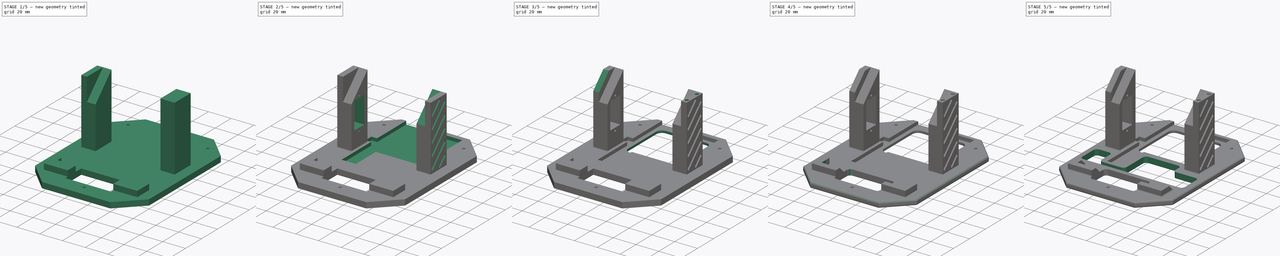
[diagram: build sequence overview — one tinted view per stage of 5, left to right]
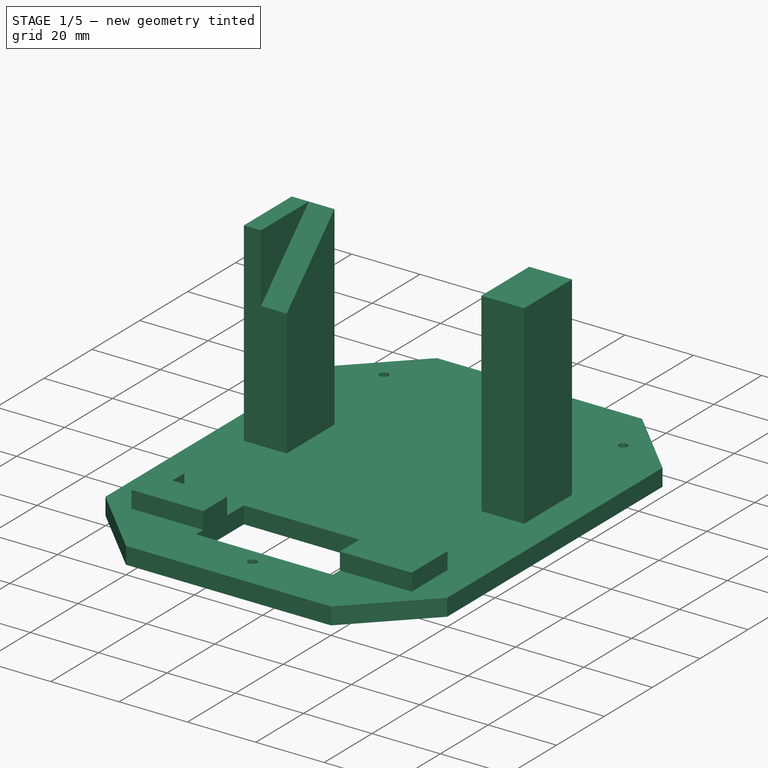
[diagram: stage 1 of 5 — iso view after this stage's code; geometry added in this stage tinted green]
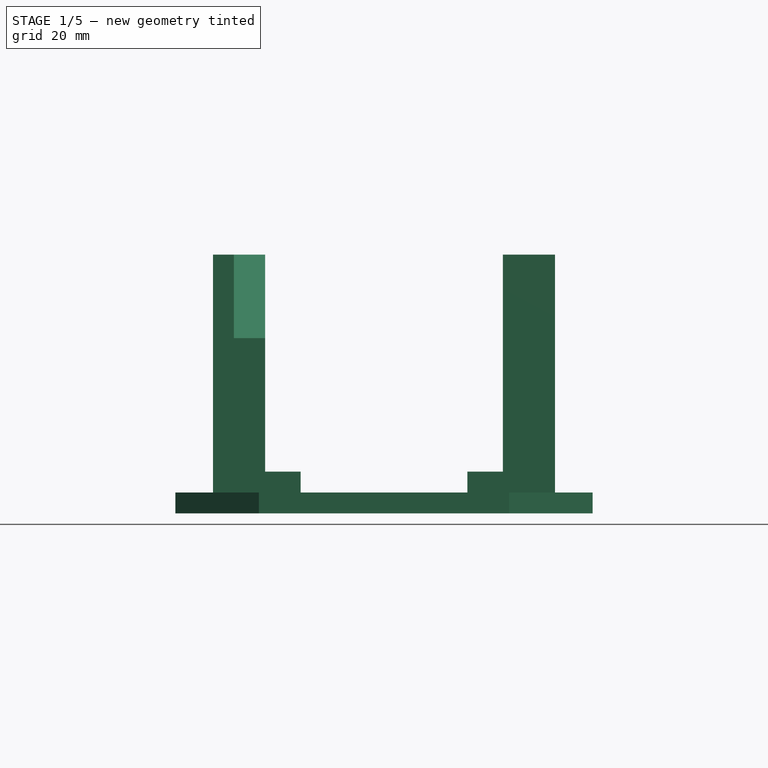
[diagram: stage 1 of 5 — front view after this stage's code; geometry added in this stage tinted green]
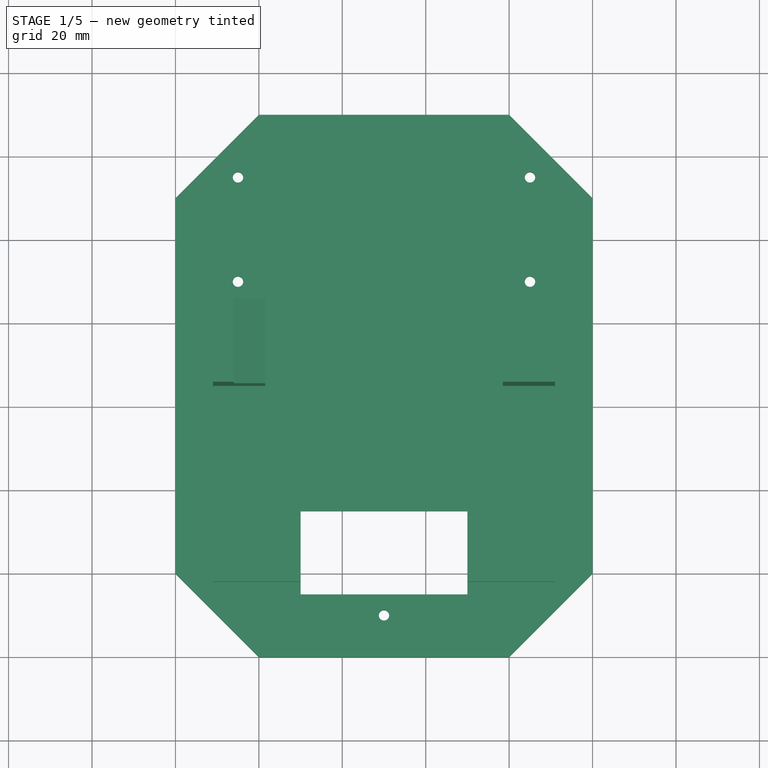
[diagram: stage 1 of 5 — top view after this stage's code; geometry added in this stage tinted green]
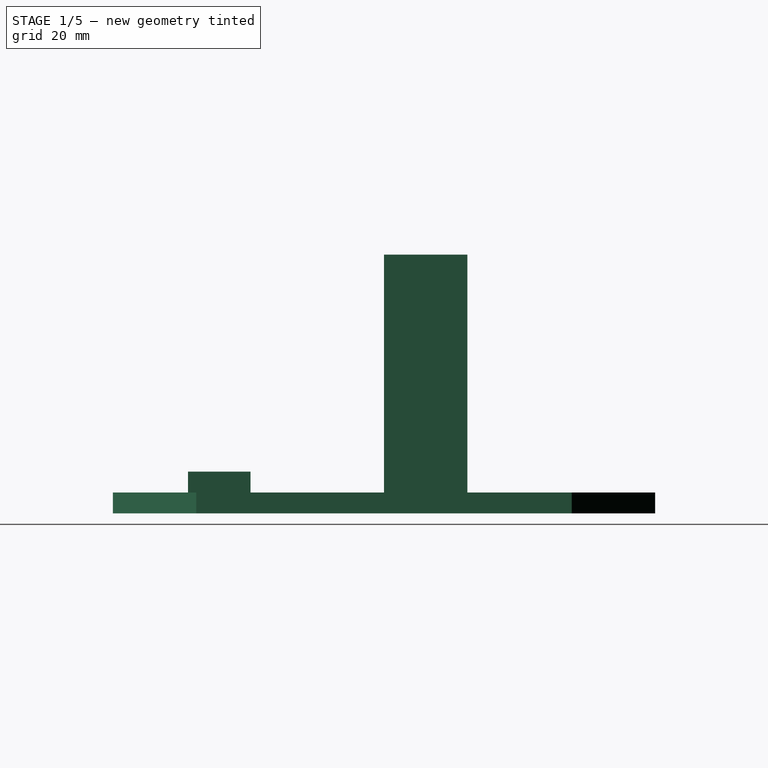
[diagram: stage 1 of 5 — right view after this stage's code; geometry added in this stage tinted green]
FCSTD DOCUMENT  (FreeCAD 0.15R4671 (Git))
Label: chassis
License: All rights reserved
LicenseURL: http://en.wikipedia.org/wiki/All_rights_reserved
objects: Sketcher::SketchObject×11, PartDesign::Pocket×8, PartDesign::Chamfer×4, PartDesign::Fillet×4, PartDesign::Pad×3
note: 41 computed .brp shape members not serialized (recipe doc carries the construction recipe); baked Part::Feature solids carry a one-line shape summary decoded from their .brp

FEATURE [Sketcher::SketchObject] Sketch
  sketch-geometry (17):
    g0: LineSegment StartX=0 StartY=0 StartZ=0 EndX=0 EndY=90 EndZ=0
    g1: LineSegment StartX=0 StartY=90 StartZ=0 EndX=20 EndY=110 EndZ=0
    g2: LineSegment StartX=20 StartY=110 StartZ=0 EndX=80 EndY=110 EndZ=0
    g3: LineSegment StartX=80 StartY=110 StartZ=0 EndX=100 EndY=90 EndZ=0
    g4: LineSegment StartX=100 StartY=90 StartZ=0 EndX=100 EndY=0 EndZ=0
    g5: LineSegment StartX=100 StartY=0 StartZ=0 EndX=80 EndY=-20 EndZ=0
    g6: LineSegment StartX=80 StartY=-20 StartZ=0 EndX=20 EndY=-20 EndZ=0
    g7: LineSegment StartX=20 StartY=-20 StartZ=0 EndX=0 EndY=0 EndZ=0
    g8: Circle CenterX=15 CenterY=95 CenterZ=0 NormalX=0 NormalY=0 NormalZ=1 Radius=1.25
    g9: Circle CenterX=15 CenterY=70 CenterZ=0 NormalX=0 NormalY=0 NormalZ=1 Radius=1.25
    g10: Circle CenterX=85 CenterY=95 CenterZ=0 NormalX=0 NormalY=0 NormalZ=1 Radius=1.25
    g11: Circle CenterX=85 CenterY=70 CenterZ=0 NormalX=0 NormalY=0 NormalZ=1 Radius=1.25
    g12: Circle CenterX=50 CenterY=-10 CenterZ=0 NormalX=0 NormalY=0 NormalZ=1 Radius=1.25
    g13: LineSegment StartX=30 StartY=-5 StartZ=0 EndX=70 EndY=-5 EndZ=0
    g14: LineSegment StartX=70 StartY=-5 StartZ=0 EndX=70 EndY=15 EndZ=0
    g15: LineSegment StartX=70 StartY=15 StartZ=0 EndX=30 EndY=15 EndZ=0
    g16: LineSegment StartX=30 StartY=15 StartZ=0 EndX=30 EndY=-5 EndZ=0
  constraints (50):
    c: Coincident(g-1,g0)
    c: PointOnObject(g0,g-2)
    c: Coincident(g0,g1)
    c: Coincident(g1,g2)
    c: Horizontal(g2)
    c: Coincident(g2,g3)
    c: Coincident(g3,g4)
    c: Vertical(g4)
    c: Coincident(g4,g5)
    c: Coincident(g5,g6)
    c: Horizontal(g6)
    c: Coincident(g6,g7)
    c: Coincident(g7,g0)
    c: Distance(g0) = 90
    c: Equal(g4,g0)
    c: PointOnObject(g4,g-1)
    c: Angle(g1) = 0.785398
    c: DistanceY(g1,g0) = -20
    c: DistanceX(g-1,g4) = 100
    c: Angle(g7) = 2.35619
    c: DistanceY(g-1,g6) = -20
    c: Equal(g3,g5)
    c: Equal(g5,g1)
    c: Equal(g11,g10)
    c: Equal(g10,g8)
    c: Equal(g8,g9)
    c: Radius(g8) = 1.25
    c: DistanceY(g8,g9) = -25
    c: DistanceX(g9,g8) = 0
    c: DistanceX(g10,g11) = 0
    c: DistanceY(g10,g11) = -25
    c: DistanceX(g10,g8) = -70
    c: DistanceY(g8,g10) = 0
    c: DistanceX(g-1,g9) = 15
    c: DistanceY(g-1,g9) = 70
    c: Equal(g9,g12)
    c: DistanceX(g12) = 50
    c: DistanceY(g12) = -10
    c: Coincident(g13,g14)
    c: Coincident(g14,g15)
    c: Coincident(g15,g16)
    c: Coincident(g16,g13)
    c: Horizontal(g13)
    c: Horizontal(g15)
    c: Vertical(g14)
    c: Vertical(g16)
    c: Distance(g13) = 40
    c: Distance(g14) = 20
    c: DistanceX(g13) = 30
    c: DistanceY(g13) = -5
FEATURE [PartDesign::Pad] Pad
  Length = 5
  Length2 = 100
  Sketch = -> Sketch
  Type = 0
FEATURE [Sketcher::SketchObject] Sketch003
  Placement = pos=(0,0,5) rot=(0,0,1;0rad)
  Support = -> Pad [Face19]
  sketch-geometry (12):
    g0: LineSegment StartX=9 StartY=13 StartZ=0 EndX=9 EndY=-2 EndZ=0
    g1: LineSegment StartX=9 StartY=-2 StartZ=0 EndX=30 EndY=-2 EndZ=0
    g2: LineSegment StartX=30 StartY=-2 StartZ=0 EndX=30 EndY=8 EndZ=0
    g3: LineSegment StartX=30 StartY=8 StartZ=0 EndX=14 EndY=8 EndZ=0
    g4: LineSegment StartX=14 StartY=8 StartZ=0 EndX=14 EndY=13 EndZ=0
    g5: LineSegment StartX=14 StartY=13 StartZ=0 EndX=9 EndY=13 EndZ=0
    g6: LineSegment StartX=70 StartY=-2 StartZ=0 EndX=91 EndY=-2 EndZ=0
    g7: LineSegment StartX=91 StartY=-2 StartZ=0 EndX=91 EndY=13 EndZ=0
    g8: LineSegment StartX=91 StartY=13 StartZ=0 EndX=86 EndY=13 EndZ=0
    g9: LineSegment StartX=86 StartY=8 StartZ=0 EndX=70 EndY=8 EndZ=0
    g10: LineSegment StartX=70 StartY=8 StartZ=0 EndX=70 EndY=-2 EndZ=0
    g11: LineSegment StartX=86 StartY=13 StartZ=0 EndX=86 EndY=8 EndZ=0
  constraints (36):
    c: Vertical(g0)
    c: Coincident(g0,g1)
    c: Horizontal(g1)
    c: Coincident(g1,g2)
    c: Vertical(g2)
    c: Coincident(g2,g3)
    c: Horizontal(g3)
    c: Coincident(g3,g4)
    c: Vertical(g4)
    c: Coincident(g4,g5)
    c: Horizontal(g5)
    c: Coincident(g5,g0)
    c: DistanceY(g1) = -2
    c: Distance(g2) = 10
    c: DistanceX(g1) = 30
    c: Distance(g3) = 16
    c: Distance(g4) = 5
    c: Horizontal(g6)
    c: Coincident(g6,g7)
    c: Vertical(g7)
    c: Coincident(g7,g8)
    c: Horizontal(g8)
    c: Horizontal(g9)
    c: Coincident(g9,g10)
    c: Vertical(g10)
    c: Coincident(g10,g6)
    c: Equal(g9,g3)
    c: DistanceX(g6) = 70
    c: DistanceY(g6) = -2
    c: Distance(g5) = 5
    c: Distance(g8) = 5
    c: Equal(g10,g2)
    c: Coincident(g11,g8)
    c: Coincident(g11,g9)
    c: Vertical(g11)
    c: Distance(g11) = 5
FEATURE [PartDesign::Pad] Pad001
  Length = 5
  Length2 = 100
  Sketch = -> Sketch003
  Type = 0
FEATURE [Sketcher::SketchObject] Sketch004
  Placement = pos=(0,0,5) rot=(0,0,1;0rad)
  Support = -> Pad001 [Face5]
  sketch-geometry (8):
    g0: LineSegment StartX=9 StartY=45 StartZ=0 EndX=9 EndY=65 EndZ=0
    g1: LineSegment StartX=9 StartY=65 StartZ=0 EndX=21.5 EndY=65 EndZ=0
    g2: LineSegment StartX=21.5 StartY=65 StartZ=0 EndX=21.5 EndY=45 EndZ=0
    g3: LineSegment StartX=21.5 StartY=45 StartZ=0 EndX=9 EndY=45 EndZ=0
    g4: LineSegment StartX=91 StartY=65 StartZ=0 EndX=78.5 EndY=65 EndZ=0
    g5: LineSegment StartX=78.5 StartY=65 StartZ=0 EndX=78.5 EndY=45 EndZ=0
    g6: LineSegment StartX=78.5 StartY=45 StartZ=0 EndX=91 EndY=45 EndZ=0
    g7: LineSegment StartX=91 StartY=45 StartZ=0 EndX=91 EndY=65 EndZ=0
  constraints (24):
    c: Vertical(g0)
    c: Coincident(g0,g1)
    c: Horizontal(g1)
    c: Coincident(g1,g2)
    c: Vertical(g2)
    c: Coincident(g2,g3)
    c: Coincident(g3,g0)
    c: Horizontal(g3)
    c: Distance(g1) = 12.5
    c: Distance(g0) = 20
    c: DistanceY(g0) = 65
    c: DistanceX(g0) = 9
    c: Coincident(g4,g5)
    c: Coincident(g5,g6)
    c: Coincident(g6,g7)
    c: Coincident(g7,g4)
    c: Horizontal(g4)
    c: Horizontal(g6)
    c: Vertical(g5)
    c: Vertical(g7)
    c: DistanceY(g4) = 65
    c: DistanceX(g4) = 91
    c: Equal(g4,g1)
    c: Equal(g5,g0)
FEATURE [PartDesign::Pad] Pad002
  Length = 57
  Length2 = 100
  Sketch = -> Sketch004
  Type = 0
FEATURE [Sketcher::SketchObject] Sketch005
  Placement = pos=(21.5,0,0) rot=(0.57735,0.57735,0.57735;2.0944rad)
  Support = -> Pad002 [Face21]
  sketch-geometry (3):
    g0: LineSegment StartX=65 StartY=62 StartZ=0 EndX=45 EndY=42 EndZ=0
    g1: LineSegment StartX=45 StartY=42 StartZ=0 EndX=45 EndY=62 EndZ=0
    g2: LineSegment StartX=45 StartY=62 StartZ=0 EndX=65 EndY=62 EndZ=0
  constraints (9):
    c: Coincident(g0,g1)
    c: Vertical(g1)
    c: Coincident(g1,g2)
    c: Coincident(g2,g0)
    c: Horizontal(g2)
    c: DistanceX(g0) = 65
    c: Distance(g2) = 20
    c: DistanceY(g0) = 62
    c: Angle(g0) = -2.35619
FEATURE [PartDesign::Pocket] Pocket
  Length = 7.5
  Sketch = -> Sketch005
  Type = 0
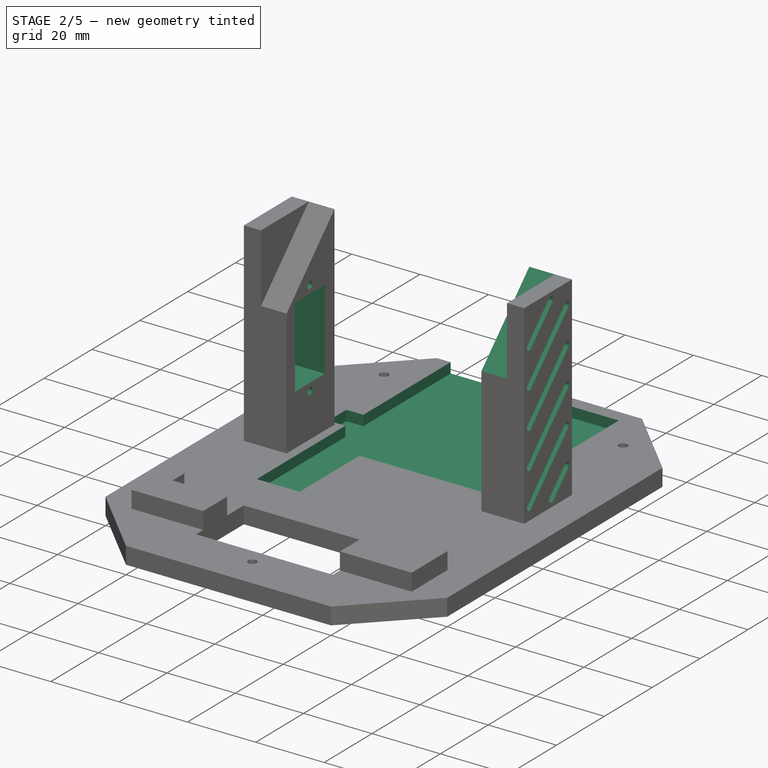
[diagram: stage 2 of 5 — iso view after this stage's code; geometry added in this stage tinted green]
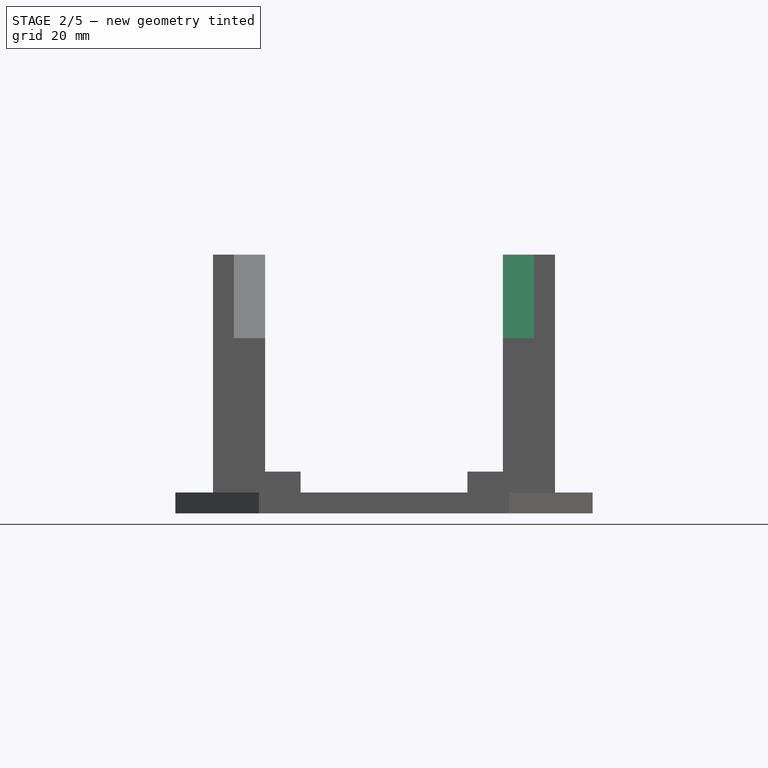
[diagram: stage 2 of 5 — front view after this stage's code; geometry added in this stage tinted green]
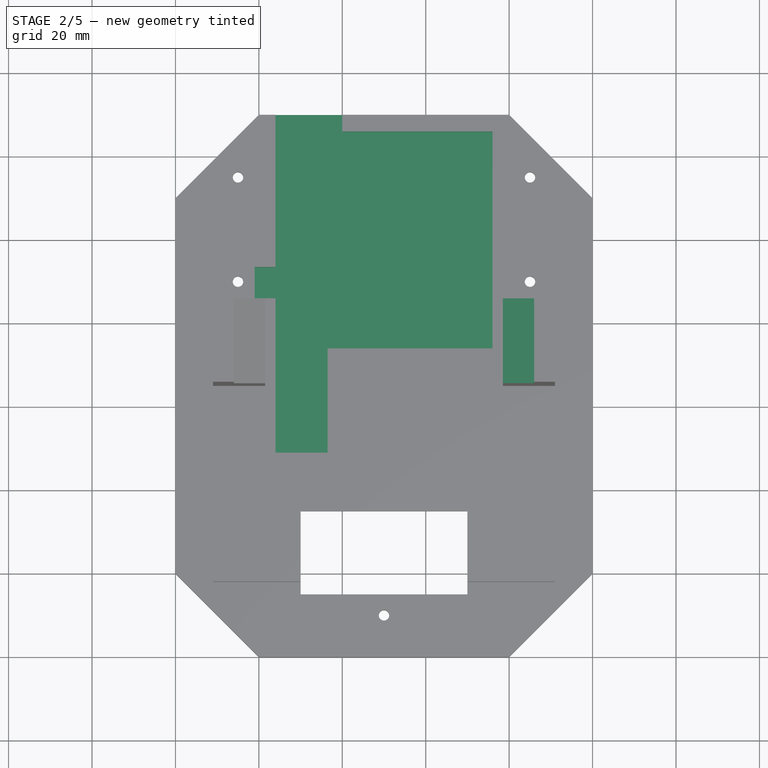
[diagram: stage 2 of 5 — top view after this stage's code; geometry added in this stage tinted green]
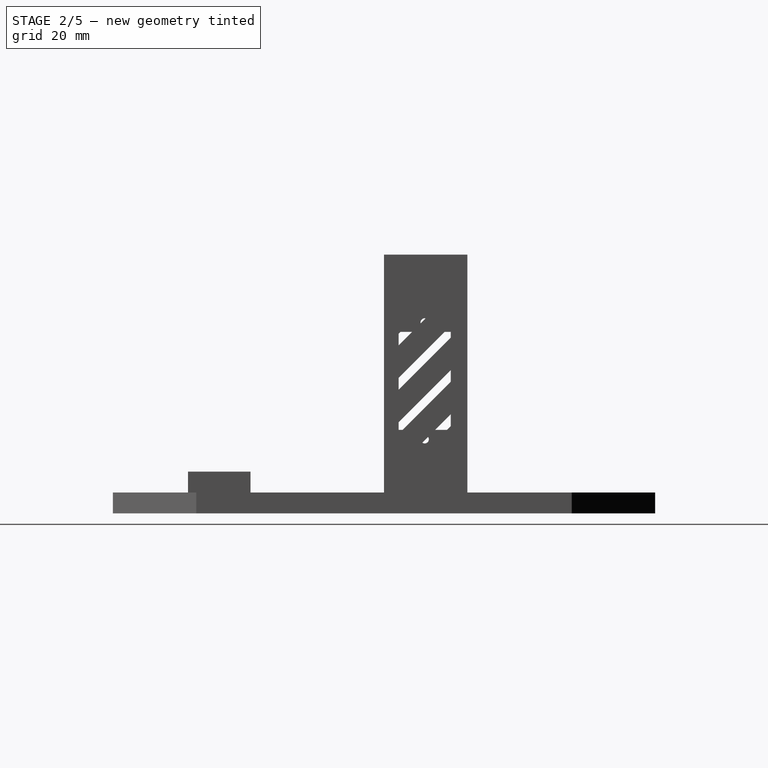
[diagram: stage 2 of 5 — right view after this stage's code; geometry added in this stage tinted green]
FEATURE [Sketcher::SketchObject] Sketch006
  Placement = pos=(78.5,0,0) rot=(0.57735,-0.57735,-0.57735;2.0944rad)
  Support = -> Pocket [Face24]
  sketch-geometry (3):
    g0: LineSegment StartX=-65 StartY=62 StartZ=0 EndX=-45 EndY=62 EndZ=0
    g1: LineSegment StartX=-45 StartY=62 StartZ=0 EndX=-45 EndY=42 EndZ=0
    g2: LineSegment StartX=-45 StartY=42 StartZ=0 EndX=-65 EndY=62 EndZ=0
  constraints (9):
    c: Horizontal(g0)
    c: Coincident(g0,g1)
    c: Vertical(g1)
    c: Coincident(g1,g2)
    c: Coincident(g2,g0)
    c: Distance(g0) = 20
    c: DistanceX(g0) = -45
    c: Angle(g2) = 2.35619
    c: DistanceY(g0) = 62
FEATURE [PartDesign::Pocket] Pocket001
  Length = 7.5
  Sketch = -> Sketch006
  Type = 0
FEATURE [Sketcher::SketchObject] Sketch007
  Placement = pos=(9,0,0) rot=(0.57735,-0.57735,-0.57735;2.0944rad)
  Support = -> Pocket001 [Face23]
  sketch-geometry (6):
    g0: LineSegment StartX=-61 StartY=20 StartZ=0 EndX=-48.5 EndY=20 EndZ=0
    g1: LineSegment StartX=-48.5 StartY=20 StartZ=0 EndX=-48.5 EndY=43.5 EndZ=0
    g2: LineSegment StartX=-48.5 StartY=43.5 StartZ=0 EndX=-61 EndY=43.5 EndZ=0
    g3: LineSegment StartX=-61 StartY=43.5 StartZ=0 EndX=-61 EndY=20 EndZ=0
    g4: Circle CenterX=-54.75 CenterY=45.75 CenterZ=0 NormalX=0 NormalY=0 NormalZ=1 Radius=1
    g5: Circle CenterX=-54.75 CenterY=17.75 CenterZ=0 NormalX=0 NormalY=0 NormalZ=1 Radius=1
  constraints (18):
    c: Coincident(g0,g1)
    c: Coincident(g1,g2)
    c: Coincident(g2,g3)
    c: Coincident(g3,g0)
    c: Horizontal(g0)
    c: Horizontal(g2)
    c: Vertical(g1)
    c: Vertical(g3)
    c: Distance(g0) = 12.5
    c: Distance(g1) = 23.5
    c: DistanceX(g0) = -61
    c: DistanceY(g0) = 20
    c: Equal(g5,g4)
    c: Radius(g4) = 1
    c: DistanceX(g4,g2) = -6.25
    c: DistanceY(g4,g2) = -2.25
    c: DistanceX(g5,g0) = -6.25
    c: DistanceY(g5,g0) = 2.25
FEATURE [PartDesign::Pocket] Pocket002
  Length = 12.5
  Sketch = -> Sketch007
  Type = 0
FEATURE [Sketcher::SketchObject] Sketch008
  Placement = pos=(0,0,5) rot=(0,0,1;0rad)
  Support = -> Pocket002 [Face5]
  sketch-geometry (14):
    g0: LineSegment StartX=76 StartY=106 StartZ=0 EndX=40 EndY=106 EndZ=0
    g1: LineSegment StartX=24 StartY=106 StartZ=0 EndX=24 EndY=73.5 EndZ=0
    g2: LineSegment StartX=36.5 StartY=54 StartZ=0 EndX=76 EndY=54 EndZ=0
    g3: LineSegment StartX=76 StartY=54 StartZ=0 EndX=76 EndY=106 EndZ=0
    g4: LineSegment StartX=24 StartY=106 StartZ=0 EndX=24 EndY=110.5 EndZ=0
    g5: LineSegment StartX=24 StartY=110.5 StartZ=0 EndX=40 EndY=110.5 EndZ=0
    g6: LineSegment StartX=40 StartY=110.5 StartZ=0 EndX=40 EndY=106 EndZ=0
    g7: LineSegment StartX=24 StartY=54 StartZ=0 EndX=24 EndY=29 EndZ=0
    g8: LineSegment StartX=24 StartY=29 StartZ=0 EndX=36.5 EndY=29 EndZ=0
    g9: LineSegment StartX=36.5 StartY=29 StartZ=0 EndX=36.5 EndY=54 EndZ=0
    g10: LineSegment StartX=24 StartY=66 StartZ=0 EndX=19 EndY=66 EndZ=0
    g11: LineSegment StartX=19 StartY=66 StartZ=0 EndX=19 EndY=73.5 EndZ=0
    g12: LineSegment StartX=19 StartY=73.5 StartZ=0 EndX=24 EndY=73.5 EndZ=0
    g13: LineSegment StartX=24 StartY=66 StartZ=0 EndX=24 EndY=54 EndZ=0
  constraints (41):
    c: Coincident(g2,g3)
    c: Coincident(g3,g0)
    c: Horizontal(g0)
    c: Horizontal(g2)
    c: Vertical(g1)
    c: Vertical(g3)
    c: Distance(g3) = 52
    c: DistanceY(g0) = 106
    c: DistanceX(g0) = 76
    c: Coincident(g4,g1)
    c: Vertical(g4)
    c: Coincident(g5,g4)
    c: Horizontal(g5)
    c: Coincident(g6,g5)
    c: Vertical(g6)
    c: Coincident(g0,g6)
    c: Distance(g4) = 4.5
    c: Distance(g5) = 16
    c: DistanceX(g13,g2) = 52
    c: DistanceY(g1,g0) = 0
    c: Coincident(g13,g7)
    c: Vertical(g7)
    c: Coincident(g7,g8)
    c: Horizontal(g8)
    c: Coincident(g8,g9)
    c: Vertical(g9)
    c: Distance(g8) = 12.5
    c: Coincident(g2,g9)
    c: DistanceY(g13,g2) = 0
    c: Distance(g9) = 25
    c: Horizontal(g10)
    c: Coincident(g11,g10)
    c: Vertical(g11)
    c: Coincident(g12,g11)
    c: Horizontal(g12)
    c: Distance(g11) = 7.5
    c: Coincident(g1,g12)
    c: Coincident(g13,g10)
    c: Tangent(g1,g13)
    c: Distance(g10,g2) = 12
    c: Distance(g12) = 5
FEATURE [PartDesign::Pocket] Pocket003
  Length = 3
  Sketch = -> Sketch008
  Type = 0
FEATURE [Sketcher::SketchObject] Sketch009
  Placement = pos=(91,0,0) rot=(0.57735,0.57735,0.57735;2.0944rad)
  Support = -> Pocket003 [Face40]
  sketch-geometry (28):
    g0: LineSegment StartX=46.5 StartY=51.6612 StartZ=0 EndX=55.3388 EndY=60.5 EndZ=0
    g1: LineSegment StartX=47.9142 StartY=50.247 StartZ=0 EndX=56.753 EndY=59.0858 EndZ=0
    g2: ArcOfCircle CenterX=56.0459 CenterY=59.7929 CenterZ=0 NormalX=0 NormalY=0 NormalZ=1 Radius=1 StartAngle=5.49779 EndAngle=8.63938
    g3: ArcOfCircle CenterX=47.2071 CenterY=50.9541 CenterZ=0 NormalX=0 NormalY=0 NormalZ=1 Radius=1 StartAngle=2.35619 EndAngle=5.49779
    g4: LineSegment [constr] StartX=46.5 StartY=51.6612 StartZ=0 EndX=46.5 EndY=0 EndZ=0
    g5: LineSegment [constr] StartX=55.3388 StartY=60.5 StartZ=0 EndX=63.5 EndY=60.5 EndZ=0
    g6: LineSegment [constr] StartX=63.5 StartY=60.5 StartZ=0 EndX=63.5 EndY=0 EndZ=0
    g7: LineSegment [constr] StartX=46.5 StartY=6.5 StartZ=0 EndX=63.5 EndY=6.5 EndZ=0
    g8: LineSegment StartX=62.0858 StartY=56.6403 StartZ=0 EndX=46.5 EndY=41.0546 EndZ=0
    g9: LineSegment StartX=63.5 StartY=55.2261 StartZ=0 EndX=47.9142 EndY=39.6404 EndZ=0
    g10: ArcOfCircle CenterX=62.7929 CenterY=55.9332 CenterZ=0 NormalX=0 NormalY=0 NormalZ=1 Radius=1 StartAngle=5.49779 EndAngle=8.63938
    g11: ArcOfCircle CenterX=47.2071 CenterY=40.3475 CenterZ=0 NormalX=0 NormalY=0 NormalZ=1 Radius=1 StartAngle=2.3562 EndAngle=5.49779
    g12: LineSegment StartX=46.5 StartY=30.448 StartZ=0 EndX=62.0858 EndY=46.0338 EndZ=0
    g13: LineSegment StartX=63.5 StartY=44.6195 StartZ=0 EndX=47.9142 EndY=29.0337 EndZ=0
    g14: ArcOfCircle CenterX=62.7929 CenterY=45.3266 CenterZ=0 NormalX=0 NormalY=0 NormalZ=1 Radius=1 StartAngle=5.49779 EndAngle=8.63938
    g15: ArcOfCircle CenterX=47.2071 CenterY=29.7409 CenterZ=0 NormalX=0 NormalY=0 NormalZ=1 Radius=1 StartAngle=2.35619 EndAngle=5.49779
    g16: ArcOfCircle CenterX=62.7929 CenterY=34.72 CenterZ=0 NormalX=0 NormalY=0 NormalZ=1 Radius=1 StartAngle=5.49779 EndAngle=8.63938
    g17: ArcOfCircle CenterX=47.2071 CenterY=19.1343 CenterZ=0 NormalX=0 NormalY=0 NormalZ=1 Radius=1 StartAngle=2.35619 EndAngle=5.49779
    g18: LineSegment StartX=62.0858 StartY=35.4271 StartZ=0 EndX=46.5 EndY=19.8414 EndZ=0
    g19: LineSegment StartX=63.5 StartY=34.0129 StartZ=0 EndX=47.9142 EndY=18.4271 EndZ=0
    g20: LineSegment StartX=46.5 StartY=9.23476 StartZ=0 EndX=62.0858 EndY=24.8205 EndZ=0
    g21: LineSegment StartX=63.5 StartY=23.4063 StartZ=0 EndX=47.9142 EndY=7.82054 EndZ=0
    g22: ArcOfCircle CenterX=62.7929 CenterY=24.1134 CenterZ=0 NormalX=0 NormalY=0 NormalZ=1 Radius=1 StartAngle=5.49779 EndAngle=8.63938
    g23: ArcOfCircle CenterX=47.2071 CenterY=8.52765 CenterZ=0 NormalX=0 NormalY=0 NormalZ=1 Radius=1 StartAngle=2.35619 EndAngle=5.49779
    g24: LineSegment StartX=57.2003 StartY=6.5 StartZ=0 EndX=63.5 EndY=12.7997 EndZ=0
    g25: LineSegment StartX=55.7861 StartY=7.91421 StartZ=0 EndX=62.0858 EndY=14.2139 EndZ=0
    g26: ArcOfCircle CenterX=62.7929 CenterY=13.5068 CenterZ=0 NormalX=0 NormalY=0 NormalZ=1 Radius=1 StartAngle=5.49779 EndAngle=8.63938
    g27: ArcOfCircle CenterX=56.4932 CenterY=7.20711 CenterZ=0 NormalX=0 NormalY=0 NormalZ=1 Radius=1 StartAngle=2.3562 EndAngle=5.49778
  constraints (98):
    c: Parallel(g0,g1)
    c: Equal(g1,g0)
    c: Coincident(g2,g0)
    c: Coincident(g2,g1)
    c: Tangent(g2,g0)
    c: Tangent(g2,g1)
    c: Coincident(g3,g0)
    c: Coincident(g3,g1)
    c: Tangent(g3,g1)
    c: Angle(g1) = 0.785398
    c: Distance(g0) = 12.5
    c: Radius(g2) = 1
    c: Coincident(g4,g0)
    c: PointOnObject(g4,g-1)
    c: Vertical(g4)
    c: Coincident(g5,g0)
    c: Horizontal(g5)
    c: DistanceX(g0) = 46.5
    c: DistanceY(g0) = 60.5
    c: PointOnObject(g6,g5)
    c: PointOnObject(g6,g-1)
    c: Vertical(g6)
    c: Coincident(g5,g6)
    c: DistanceX(g5,g0) = -17
    c: PointOnObject(g7,g4)
    c: PointOnObject(g7,g6)
    c: Horizontal(g7)
    c: DistanceY(g7,g5) = 54
    c: Parallel(g1,g8)
    c: PointOnObject(g9,g6)
    c: Parallel(g9,g8)
    c: Equal(g8,g9)
    c: PointOnObject(g8,g4)
    c: Coincident(g10,g9)
    c: Coincident(g8,g10)
    c: Tangent(g8,g10)
    c: Tangent(g10,g9)
    c: Equal(g10,g2)
    c: Coincident(g11,g8)
    c: Coincident(g11,g9)
    c: Tangent(g11,g9)
    c: PointOnObject(g12,g4)
    c: PointOnObject(g13,g6)
    c: Parallel(g13,g12)
    c: Parallel(g12,g1)
    c: Equal(g13,g12)
    c: Distance(g12,g9) = 5.5
    c: Coincident(g14,g12)
    c: Coincident(g14,g13)
    c: Tangent(g14,g13)
    c: Tangent(g14,g12)
    c: Equal(g14,g2)
    c: Coincident(g15,g12)
    c: Coincident(g15,g13)
    c: Tangent(g15,g13)
    c: Distance(g1,g8) = 5.5
    c: PointOnObject(g17,g4)
    c: PointOnObject(g16,g6)
    c: Coincident(g18,g16)
    c: Coincident(g18,g17)
    c: Coincident(g19,g16)
    c: Coincident(g19,g17)
    c: Tangent(g19,g17)
    c: Tangent(g16,g19)
    c: Tangent(g18,g16)
    c: Equal(g16,g2)
    c: Parallel(g19,g18)
    c: Parallel(g18,g1)
    c: Tangent(g17,g18)
    c: Distance(g13,g18) = 5.5
    c: PointOnObject(g20,g4)
    c: PointOnObject(g21,g6)
    c: Parallel(g21,g20)
    c: Parallel(g20,g1)
    c: Equal(g21,g20)
    c: Distance(g16,g20) = 5.5
    c: Coincident(g22,g20)
    c: Coincident(g22,g21)
    c: Tangent(g22,g20)
    c: Tangent(g22,g21)
    c: Coincident(g23,g21)
    c: Coincident(g23,g20)
    c: Tangent(g23,g21)
    c: Equal(g22,g2)
    c: PointOnObject(g24,g7)
    c: PointOnObject(g24,g6)
    c: Parallel(g24,g25)
    c: Parallel(g25,g1)
    c: Equal(g24,g25)
    c: Distance(g25,g21) = 5.5
    c: Coincident(g26,g25)
    c: Coincident(g26,g24)
    c: Tangent(g26,g24)
    c: Tangent(g25,g26)
    c: Equal(g26,g2)
    c: Coincident(g27,g24)
    c: Coincident(g27,g25)
    c: Tangent(g27,g24)
FEATURE [PartDesign::Pocket] Pocket004
  Length = 12.5
  Sketch = -> Sketch009
  Type = 0
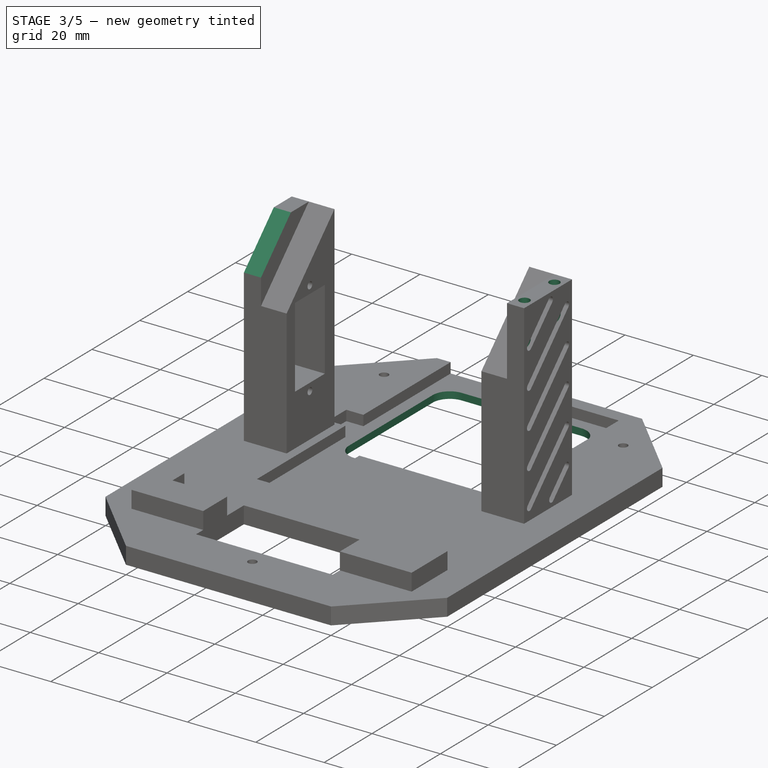
[diagram: stage 3 of 5 — iso view after this stage's code; geometry added in this stage tinted green]
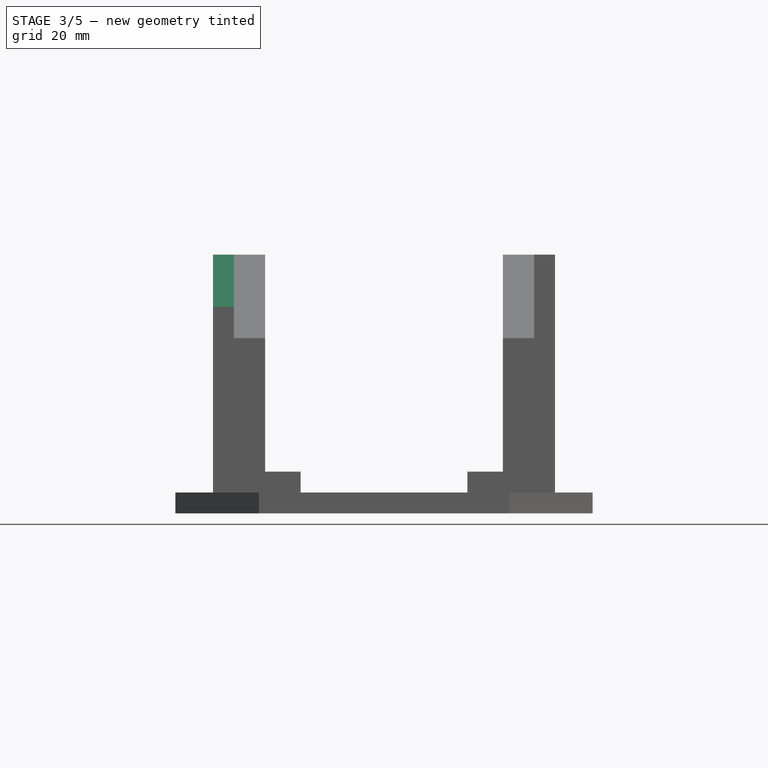
[diagram: stage 3 of 5 — front view after this stage's code; geometry added in this stage tinted green]
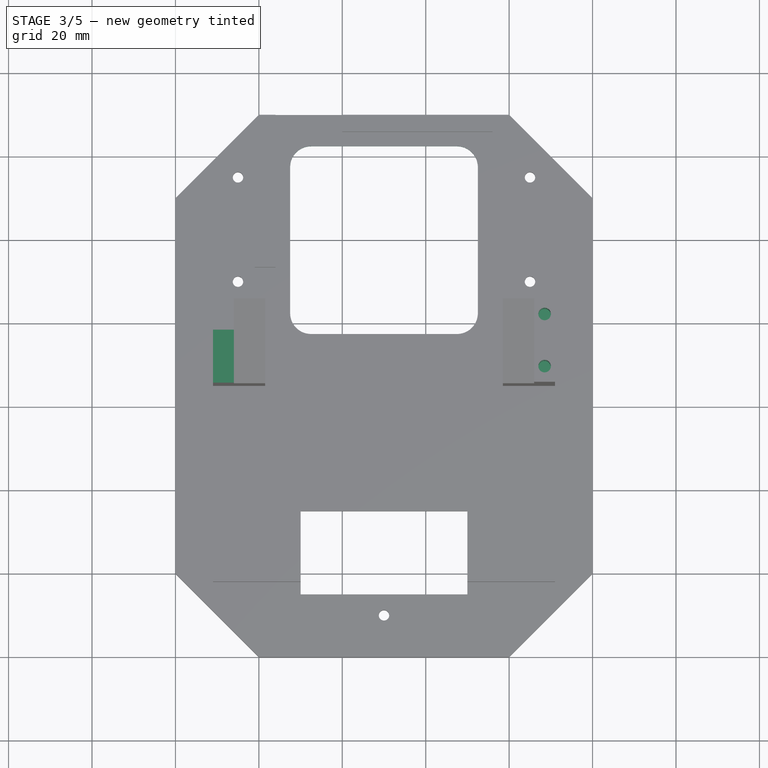
[diagram: stage 3 of 5 — top view after this stage's code; geometry added in this stage tinted green]
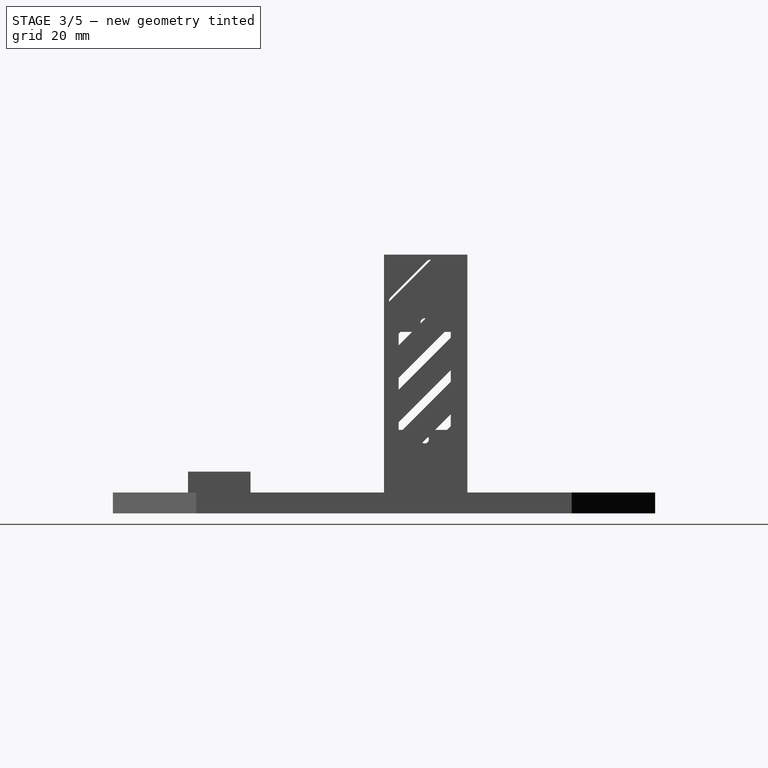
[diagram: stage 3 of 5 — right view after this stage's code; geometry added in this stage tinted green]
FEATURE [Sketcher::SketchObject] Sketch010
  Placement = pos=(0,0,62) rot=(0,0,1;0rad)
  Support = -> Pocket004 [Face84]
  sketch-geometry (2):
    g0: Circle CenterX=88.5 CenterY=48.75 CenterZ=0 NormalX=0 NormalY=0 NormalZ=1 Radius=1.5
    g1: Circle CenterX=88.5 CenterY=61.25 CenterZ=0 NormalX=0 NormalY=0 NormalZ=1 Radius=1.5
  constraints (6):
    c: Equal(g1,g0)
    c: Radius(g1) = 1.5
    c: DistanceX(g1,g0) = 0
    c: DistanceY(g1,g0) = -12.5
    c: DistanceX(g0) = 88.5
    c: DistanceY(g0) = 48.75
FEATURE [PartDesign::Pocket] Pocket005
  Length = 15
  Sketch = -> Sketch010
  Type = 0
FEATURE [Sketcher::SketchObject] Sketch011
  Placement = pos=(0,0,5) rot=(0,0,1;0rad)
  Support = -> Pocket005 [Face5]
  sketch-geometry (8):
    g0: LineSegment StartX=32.5 StartY=57.5 StartZ=0 EndX=67.5 EndY=57.5 EndZ=0
    g1: LineSegment StartX=72.5 StartY=62.5 StartZ=0 EndX=72.5 EndY=97.5 EndZ=0
    g2: LineSegment StartX=67.5 StartY=102.5 StartZ=0 EndX=32.5 EndY=102.5 EndZ=0
    g3: LineSegment StartX=27.5 StartY=97.5 StartZ=0 EndX=27.5 EndY=62.5 EndZ=0
    g4: ArcOfCircle CenterX=32.5 CenterY=97.5 CenterZ=0 NormalX=0 NormalY=0 NormalZ=1 Radius=5 StartAngle=1.5708 EndAngle=3.14159
    g5: ArcOfCircle CenterX=67.5 CenterY=97.5 CenterZ=0 NormalX=0 NormalY=0 NormalZ=1 Radius=5 StartAngle=0 EndAngle=1.5708
    g6: ArcOfCircle CenterX=67.5 CenterY=62.5 CenterZ=0 NormalX=0 NormalY=0 NormalZ=1 Radius=5 StartAngle=4.71239 EndAngle=6.28319
    g7: ArcOfCircle CenterX=32.5 CenterY=62.5 CenterZ=0 NormalX=0 NormalY=0 NormalZ=1 Radius=5 StartAngle=3.14159 EndAngle=4.71239
  constraints (20):
    c: Horizontal(g0)
    c: Horizontal(g2)
    c: Vertical(g1)
    c: Vertical(g3)
    c: Equal(g0,g1)
    c: Tangent(g3,g4) = -1.5708
    c: Tangent(g2,g4) = -1.5708
    c: Tangent(g2,g5) = -1.5708
    c: Tangent(g1,g5) = -1.5708
    c: Tangent(g1,g6) = -1.5708
    c: Tangent(g0,g6) = -1.5708
    c: Tangent(g3,g7) = -1.5708
    c: Tangent(g0,g7) = -1.5708
    c: DistanceY(g0) = 57.5
    c: DistanceX(g3) = 27.5
    c: DistanceX(g3,g1) = 45
    c: DistanceY(g0,g2) = 45
    c: Equal(g7,g4)
    c: Equal(g5,g6)
    c: Radius(g4) = 5
FEATURE [PartDesign::Pocket] Pocket006
  Length = 5
  Sketch = -> Sketch011
  Type = 0
FEATURE [PartDesign::Chamfer] Chamfer
  Base = -> Pocket006 [Edge141]
  Size = 12.5
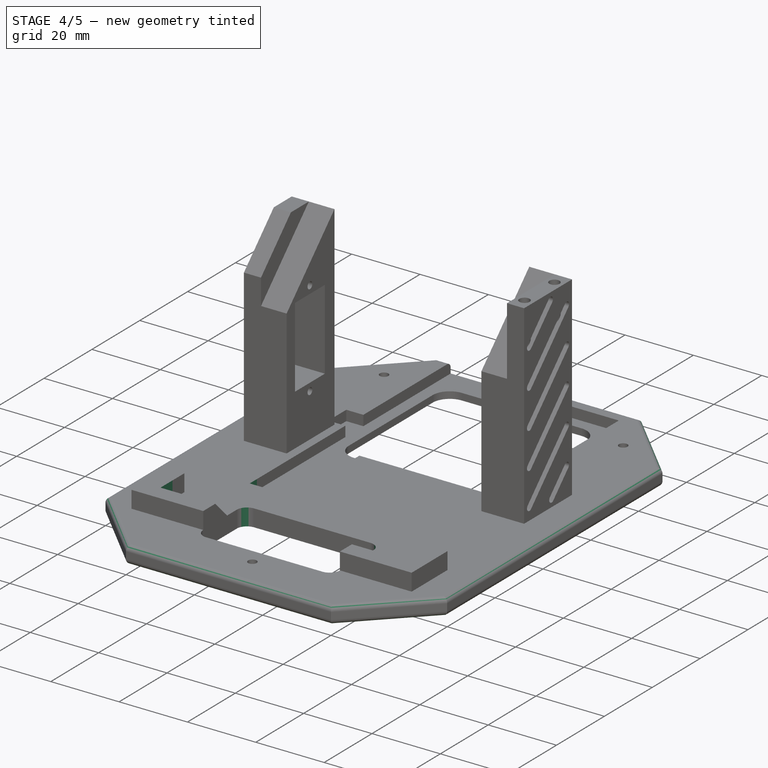
[diagram: stage 4 of 5 — iso view after this stage's code; geometry added in this stage tinted green]
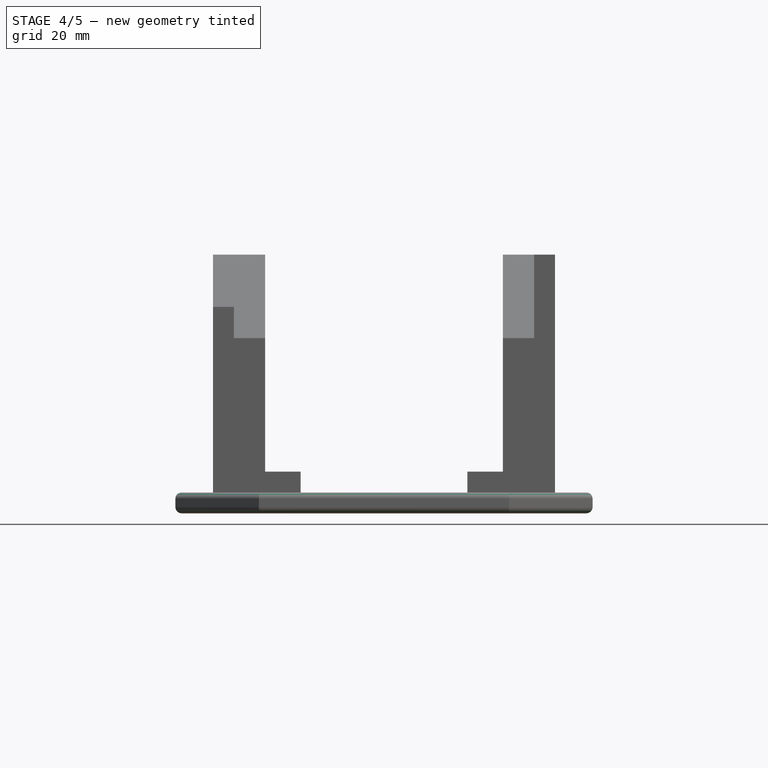
[diagram: stage 4 of 5 — front view after this stage's code; geometry added in this stage tinted green]
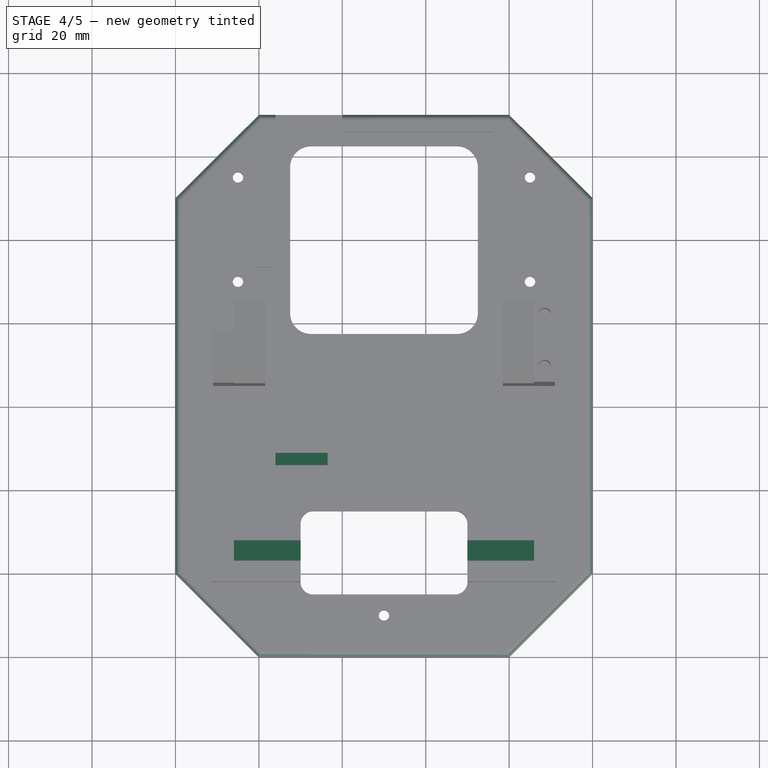
[diagram: stage 4 of 5 — top view after this stage's code; geometry added in this stage tinted green]
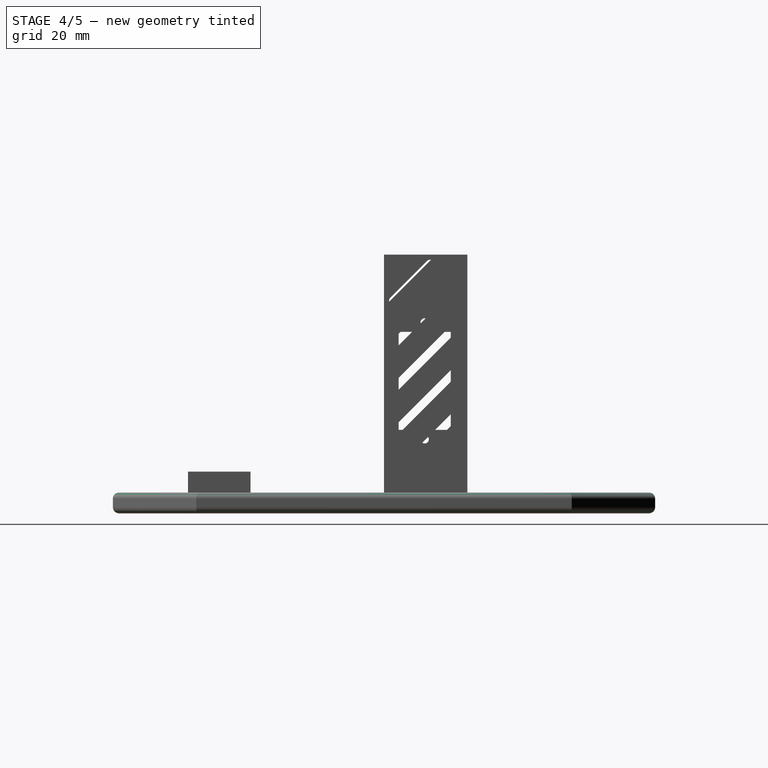
[diagram: stage 4 of 5 — right view after this stage's code; geometry added in this stage tinted green]
FEATURE [PartDesign::Chamfer] Chamfer001
  Base = -> Chamfer [Edge215,Edge216]
  Size = 4.99
FEATURE [PartDesign::Chamfer] Chamfer002
  Base = -> Chamfer001 [Edge22]
  Size = 2.99
FEATURE [PartDesign::Fillet] Fillet
  Base = -> Chamfer002 [Edge22,Edge24,Edge23,Edge21,Edge19,Edge17,Edge16,Edge18,Edge20,Edge96,Edge92,Edge88,Edge83,Edge90,Edge94,Edge98,Edge99]
  Radius = 1.5
FEATURE [PartDesign::Fillet] Fillet001
  Base = -> Fillet [Edge186,Edge190,Edge184,Edge183]
  Radius = 3
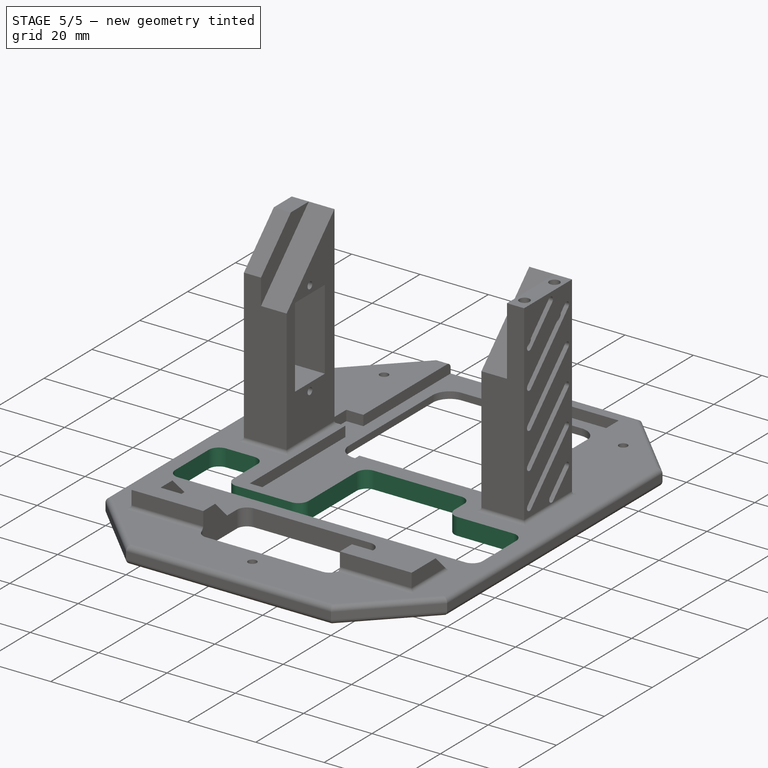
[diagram: stage 5 of 5 — iso view after this stage's code; geometry added in this stage tinted green]
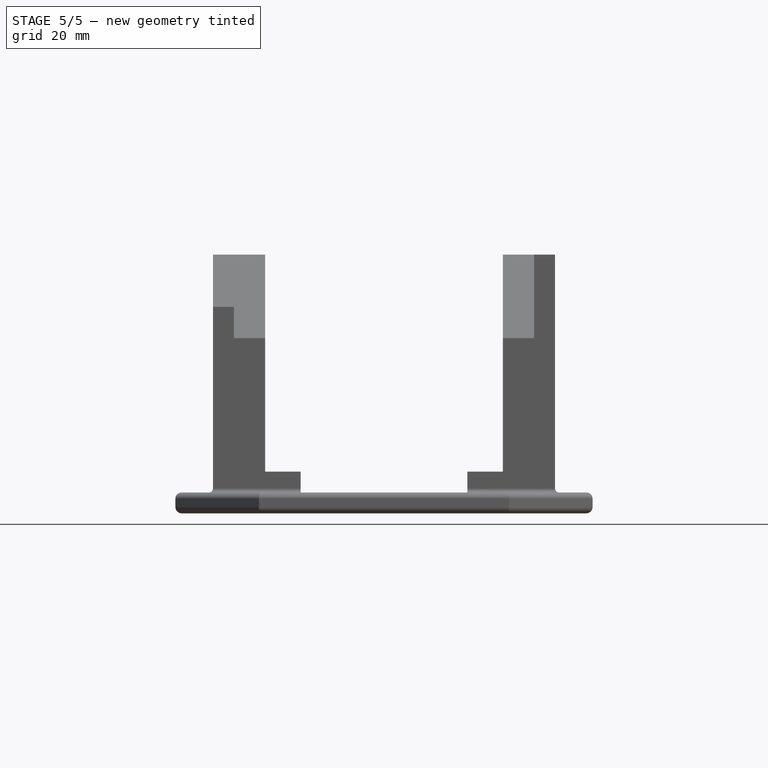
[diagram: stage 5 of 5 — front view after this stage's code; geometry added in this stage tinted green]
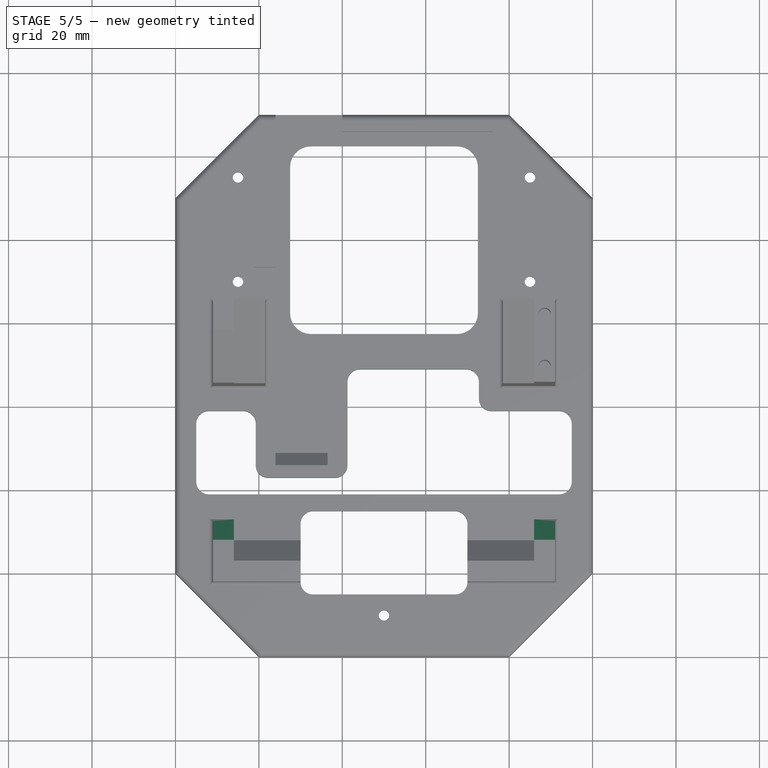
[diagram: stage 5 of 5 — top view after this stage's code; geometry added in this stage tinted green]
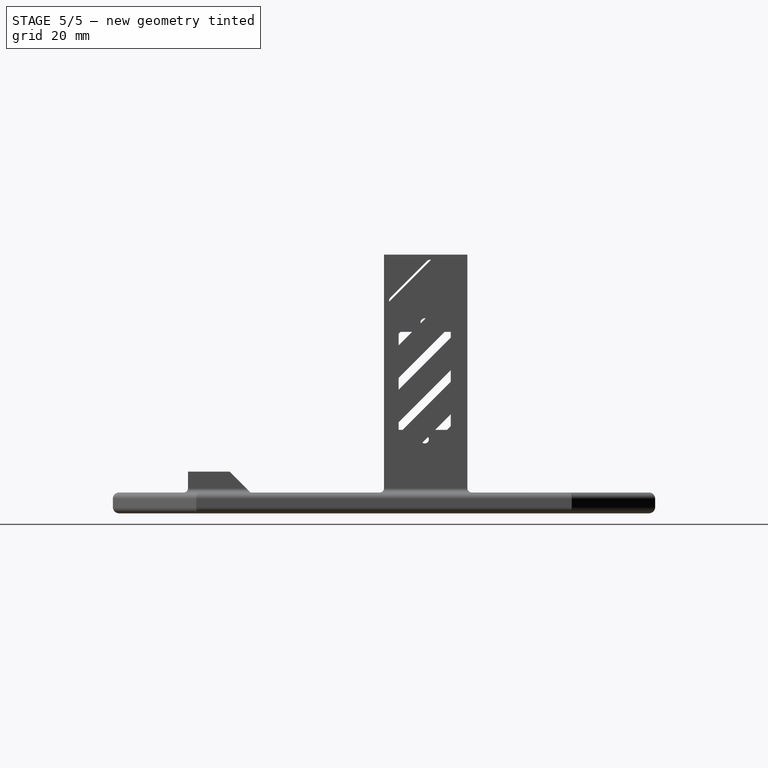
[diagram: stage 5 of 5 — right view after this stage's code; geometry added in this stage tinted green]
FEATURE [PartDesign::Fillet] Fillet002
  Base = -> Fillet001 [Edge7,Edge5,Edge4,Edge6,Edge45,Edge43,Edge47,Edge49,Edge48,Edge50,Edge46,Edge44]
  Radius = 0.999
FEATURE [PartDesign::Chamfer] Chamfer003
  Base = -> Fillet002 [Edge73,Edge85]
  Size = 4.99
FEATURE [Sketcher::SketchObject] Sketch012
  Placement = pos=(0,0,5) rot=(0,0,1;0rad)
  Support = -> Chamfer003 [Face4]
  sketch-geometry (10):
    g0: LineSegment StartX=41.25 StartY=23 StartZ=0 EndX=41.25 EndY=49 EndZ=0
    g1: LineSegment StartX=41.25 StartY=49 StartZ=0 EndX=72.75 EndY=49 EndZ=0
    g2: LineSegment StartX=72.75 StartY=49 StartZ=0 EndX=72.75 EndY=39 EndZ=0
    g3: LineSegment StartX=72.75 StartY=39 StartZ=0 EndX=95 EndY=39 EndZ=0
    g4: LineSegment StartX=95 StartY=39 StartZ=0 EndX=95 EndY=19 EndZ=0
    g5: LineSegment StartX=95 StartY=19 StartZ=0 EndX=5 EndY=19 EndZ=0
    g6: LineSegment StartX=5 StartY=19 StartZ=0 EndX=5 EndY=39 EndZ=0
    g7: LineSegment StartX=5 StartY=39 StartZ=0 EndX=19.25 EndY=39 EndZ=0
    g8: LineSegment StartX=19.25 StartY=39 StartZ=0 EndX=19.25 EndY=23 EndZ=0
    g9: LineSegment StartX=19.25 StartY=23 StartZ=0 EndX=41.25 EndY=23 EndZ=0
  constraints (30):
    c: Vertical(g0)
    c: Coincident(g0,g1)
    c: Horizontal(g1)
    c: Coincident(g1,g2)
    c: Vertical(g2)
    c: Coincident(g2,g3)
    c: Horizontal(g3)
    c: Coincident(g3,g4)
    c: Vertical(g4)
    c: Coincident(g4,g5)
    c: Horizontal(g5)
    c: Coincident(g5,g6)
    c: Vertical(g6)
    c: Coincident(g6,g7)
    c: Horizontal(g7)
    c: Coincident(g7,g8)
    c: Vertical(g8)
    c: Coincident(g8,g9)
    c: Horizontal(g9)
    c: Coincident(g0,g9)
    c: DistanceX(g5) = 5
    c: DistanceY(g5) = 19
    c: Distance(g6) = 20
    c: Distance(g7) = 14.25
    c: Distance(g8) = 16
    c: Distance(g9) = 22
    c: Distance(g0) = 26
    c: Distance(g1) = 31.5
    c: Distance(g2) = 10
    c: Distance(g3) = 22.25
FEATURE [PartDesign::Pocket] Pocket007
  Length = 5
  Sketch = -> Sketch012
  Type = 0
FEATURE [PartDesign::Fillet] Fillet003
  Base = -> Pocket007 [Edge167,Edge165,Edge163,Edge161,Edge159,Edge157,Edge155,Edge153,Edge150,Edge152]
  Radius = 3
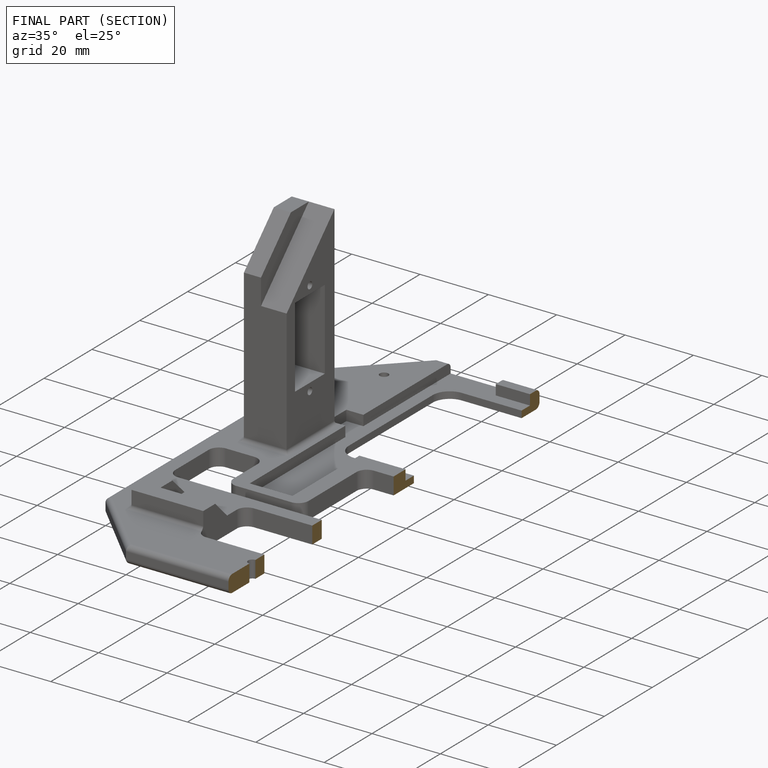
[diagram: finished part — half-section view (interior)]
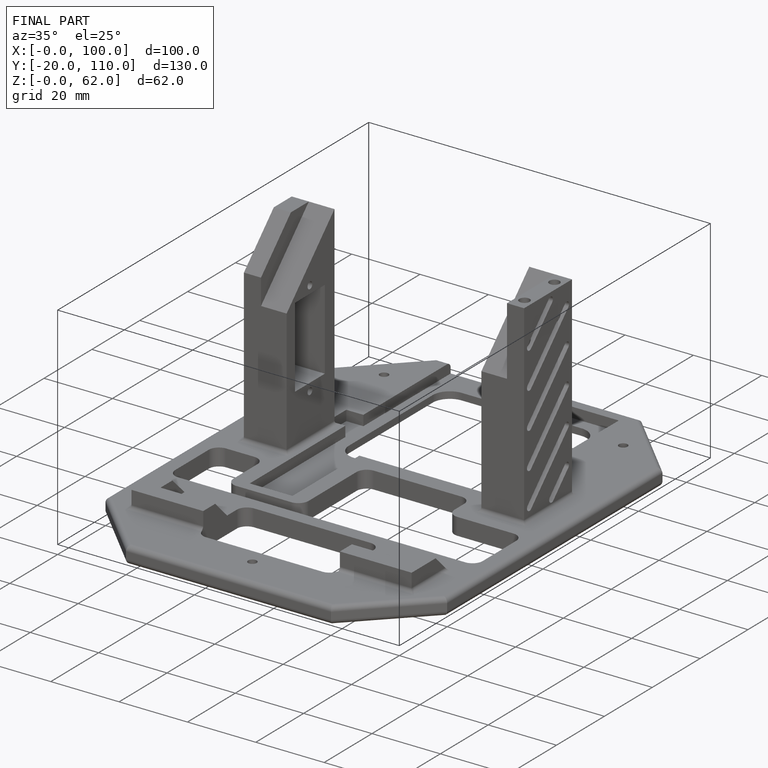
[diagram: finished part — iso view with bounding-box wireframe]
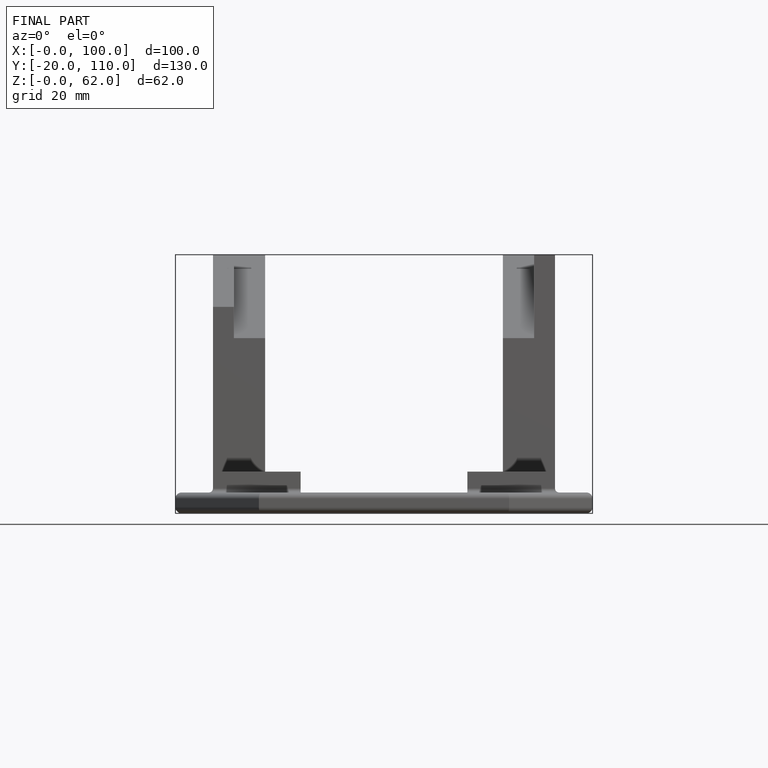
[diagram: finished part — front view with bounding-box wireframe]
